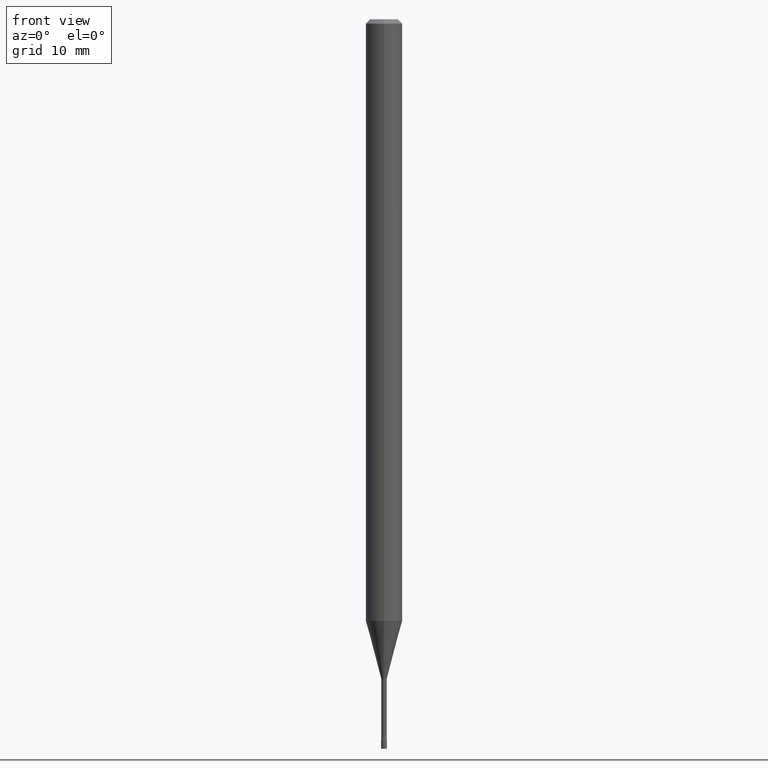
[diagram: clean part render]
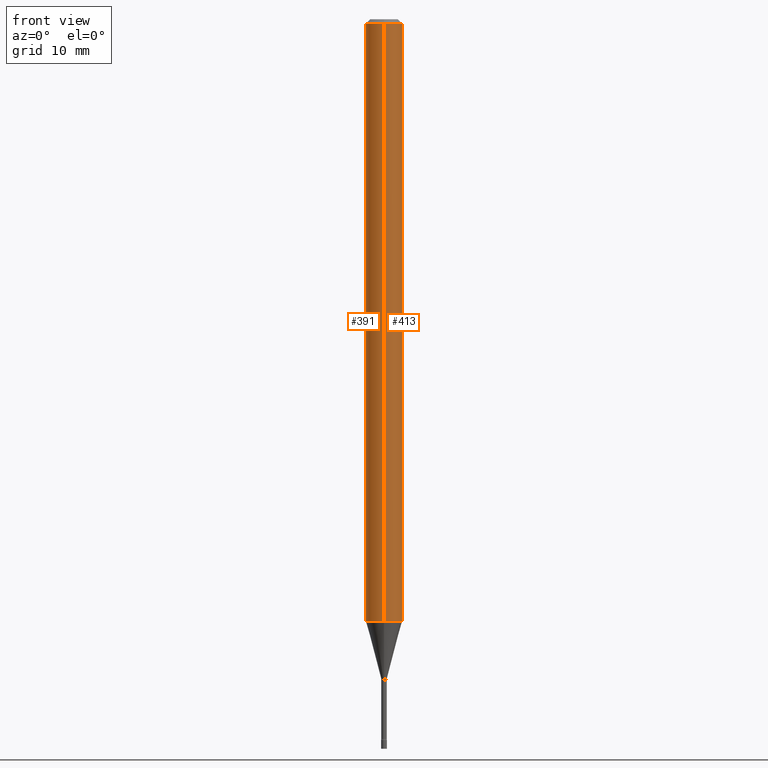
[diagram: same view with one multi-face feature highlighted, each face labeled with its STEP entity id]
A machine part, front view. The highlighted faces form ONE feature: a constant-radius fillet chain: 2 tangent blend faces with common blend radius 1.5875 mm. The faces share edges in the B-rep.
Their STEP definitions:
[1] entity #413 (Cylinder):
#21 = CARTESIAN_POINT ( 'NONE',  ( 4.440892098500625669E-16, 0.06250000000000000000, -2.182199867942855038E-16 ) ) ;
#32 = ORIENTED_EDGE ( 'NONE', *, *, #261, .T. ) ;
#34 = VERTEX_POINT ( 'NONE', #209 ) ;
#60 = CARTESIAN_POINT ( 'NONE',  ( -4.364351673553912750E-16, -0.06250000000000005551, -0.01499999999999981209 ) ) ;
#83 = EDGE_LOOP ( 'NONE', ( #241, #32, #414, #150 ) ) ;
#88 = CIRCLE ( 'NONE', #273, 0.06250000000000000000 ) ;
#101 = EDGE_CURVE ( 'NONE', #330, #34, #512, .T. ) ;
#102 = CARTESIAN_POINT ( 'NONE',  ( 4.440892098501133005E-16, 0.06249999999999995143, -0.01500000000000024751 ) ) ;
#107 = LINE ( 'NONE', #139, #145 ) ;
#119 = DIRECTION ( 'NONE',  ( -2.445441956787615872E-29, 3.491519788708568062E-15, 1.000000000000000000 ) ) ;
#139 = CARTESIAN_POINT ( 'NONE',  ( -4.364351673553916201E-16, -0.06250000000000000000, 2.182199867942855038E-16 ) ) ;
#145 = VECTOR ( 'NONE', #319, 39.37007874015748143 ) ;
#150 = ORIENTED_EDGE ( 'NONE', *, *, #204, .F. ) ;
#193 = DIRECTION ( 'NONE',  ( -2.445441956787615872E-29, 3.491519788708568062E-15, 1.000000000000000000 ) ) ;
#204 = EDGE_CURVE ( 'NONE', #330, #401, #107, .T. ) ;
#209 = CARTESIAN_POINT ( 'NONE',  ( 4.440892098501128074E-16, 0.06249999999999279743, -2.061828102118093753 ) ) ;
#222 = CARTESIAN_POINT ( 'NONE',  ( 0.000000000000000000, 0.000000000000000000, 0.000000000000000000 ) ) ;
#229 = CARTESIAN_POINT ( 'NONE',  ( 3.668162935181430919E-31, -5.237279683062863531E-17, -0.01500000000000003067 ) ) ;
#237 = EDGE_CURVE ( 'NONE', #401, #238, #88, .T. ) ;
#238 = VERTEX_POINT ( 'NONE', #102 ) ;
#241 = ORIENTED_EDGE ( 'NONE', *, *, #101, .T. ) ;
#261 = EDGE_CURVE ( 'NONE', #34, #238, #463, .T. ) ;
#268 = CARTESIAN_POINT ( 'NONE',  ( 5.042080948603366271E-29, -7.198913619460753817E-15, -2.061828102118093309 ) ) ;
#273 = AXIS2_PLACEMENT_3D ( 'NONE', #229, #431, #462 ) ;
#274 = FACE_OUTER_BOUND ( 'NONE', #83, .T. ) ;
#316 = CARTESIAN_POINT ( 'NONE',  ( -4.364351673553412316E-16, -0.06250000000000720257, -2.061828102118092865 ) ) ;
#319 = DIRECTION ( 'NONE',  ( -2.445441956787615872E-29, 3.491519788708568062E-15, 1.000000000000000000 ) ) ;
#330 = VERTEX_POINT ( 'NONE', #316 ) ;
#339 = AXIS2_PLACEMENT_3D ( 'NONE', #222, #193, #400 ) ;
#355 = VECTOR ( 'NONE', #467, 39.37007874015748143 ) ;
#400 = DIRECTION ( 'NONE',  ( -6.982962677686265922E-15, -1.000000000000000000, 3.491519788708568062E-15 ) ) ;
#401 = VERTEX_POINT ( 'NONE', #60 ) ;
#406 = DIRECTION ( 'NONE',  ( -6.982962677686265922E-15, -1.000000000000000000, 4.370956789862821150E-15 ) ) ;
#413 = ADVANCED_FACE ( 'NONE', ( #274 ), #430, .T. ) ;
#414 = ORIENTED_EDGE ( 'NONE', *, *, #237, .F. ) ;
#430 = CYLINDRICAL_SURFACE ( 'NONE', #339, 0.06250000000000000000 ) ;
#431 = DIRECTION ( 'NONE',  ( -2.445441956787615872E-29, 3.491519788708568062E-15, 1.000000000000000000 ) ) ;
#439 = AXIS2_PLACEMENT_3D ( 'NONE', #268, #119, #406 ) ;
#462 = DIRECTION ( 'NONE',  ( -6.982962677686265922E-15, -1.000000000000000000, 3.483106191921935554E-15 ) ) ;
#463 = LINE ( 'NONE', #21, #355 ) ;
#467 = DIRECTION ( 'NONE',  ( -2.445441956787615872E-29, 3.491519788708568062E-15, 1.000000000000000000 ) ) ;
#512 = CIRCLE ( 'NONE', #439, 0.06250000000000000000 ) ;
[2] entity #391 (Cylinder):
#3 = ORIENTED_EDGE ( 'NONE', *, *, #140, .F. ) ;
#21 = CARTESIAN_POINT ( 'NONE',  ( 4.440892098500625669E-16, 0.06250000000000000000, -2.182199867942855038E-16 ) ) ;
#34 = VERTEX_POINT ( 'NONE', #209 ) ;
#58 = DIRECTION ( 'NONE',  ( -6.982962677686265922E-15, -1.000000000000000000, 4.370956789862821150E-15 ) ) ;
#60 = CARTESIAN_POINT ( 'NONE',  ( -4.364351673553912750E-16, -0.06250000000000005551, -0.01499999999999981209 ) ) ;
#84 = DIRECTION ( 'NONE',  ( -2.445441956787615872E-29, 3.491519788708568062E-15, 1.000000000000000000 ) ) ;
#100 = FACE_OUTER_BOUND ( 'NONE', #326, .T. ) ;
#102 = CARTESIAN_POINT ( 'NONE',  ( 4.440892098501133005E-16, 0.06249999999999995143, -0.01500000000000024751 ) ) ;
#107 = LINE ( 'NONE', #139, #145 ) ;
#111 = ORIENTED_EDGE ( 'NONE', *, *, #226, .T. ) ;
#139 = CARTESIAN_POINT ( 'NONE',  ( -4.364351673553916201E-16, -0.06250000000000000000, 2.182199867942855038E-16 ) ) ;
#140 = EDGE_CURVE ( 'NONE', #238, #401, #315, .T. ) ;
#145 = VECTOR ( 'NONE', #319, 39.37007874015748143 ) ;
#194 = ORIENTED_EDGE ( 'NONE', *, *, #204, .T. ) ;
#201 = AXIS2_PLACEMENT_3D ( 'NONE', #322, #269, #58 ) ;
#204 = EDGE_CURVE ( 'NONE', #330, #401, #107, .T. ) ;
#209 = CARTESIAN_POINT ( 'NONE',  ( 4.440892098501128074E-16, 0.06249999999999279743, -2.061828102118093753 ) ) ;
#210 = DIRECTION ( 'NONE',  ( -6.982962677686265922E-15, -1.000000000000000000, 3.483106191921935554E-15 ) ) ;
#226 = EDGE_CURVE ( 'NONE', #34, #330, #450, .T. ) ;
#230 = CYLINDRICAL_SURFACE ( 'NONE', #433, 0.06250000000000000000 ) ;
#238 = VERTEX_POINT ( 'NONE', #102 ) ;
#261 = EDGE_CURVE ( 'NONE', #34, #238, #463, .T. ) ;
#269 = DIRECTION ( 'NONE',  ( -2.445441956787615872E-29, 3.491519788708568062E-15, 1.000000000000000000 ) ) ;
#270 = DIRECTION ( 'NONE',  ( -2.445441956787615872E-29, 3.491519788708568062E-15, 1.000000000000000000 ) ) ;
#295 = CARTESIAN_POINT ( 'NONE',  ( 3.668162935181430919E-31, -5.237279683062863531E-17, -0.01500000000000003067 ) ) ;
#315 = CIRCLE ( 'NONE', #432, 0.06250000000000000000 ) ;
#316 = CARTESIAN_POINT ( 'NONE',  ( -4.364351673553412316E-16, -0.06250000000000720257, -2.061828102118092865 ) ) ;
#319 = DIRECTION ( 'NONE',  ( -2.445441956787615872E-29, 3.491519788708568062E-15, 1.000000000000000000 ) ) ;
#322 = CARTESIAN_POINT ( 'NONE',  ( 5.042080948603366271E-29, -7.198913619460753817E-15, -2.061828102118093309 ) ) ;
#326 = EDGE_LOOP ( 'NONE', ( #334, #111, #194, #3 ) ) ;
#330 = VERTEX_POINT ( 'NONE', #316 ) ;
#334 = ORIENTED_EDGE ( 'NONE', *, *, #261, .F. ) ;
#352 = DIRECTION ( 'NONE',  ( -6.982962677686265922E-15, -1.000000000000000000, 3.491519788708568062E-15 ) ) ;
#355 = VECTOR ( 'NONE', #467, 39.37007874015748143 ) ;
#391 = ADVANCED_FACE ( 'NONE', ( #100 ), #230, .T. ) ;
#395 = CARTESIAN_POINT ( 'NONE',  ( 0.000000000000000000, 0.000000000000000000, 0.000000000000000000 ) ) ;
#401 = VERTEX_POINT ( 'NONE', #60 ) ;
#432 = AXIS2_PLACEMENT_3D ( 'NONE', #295, #84, #210 ) ;
#433 = AXIS2_PLACEMENT_3D ( 'NONE', #395, #270, #352 ) ;
#450 = CIRCLE ( 'NONE', #201, 0.06250000000000000000 ) ;
#463 = LINE ( 'NONE', #21, #355 ) ;
#467 = DIRECTION ( 'NONE',  ( -2.445441956787615872E-29, 3.491519788708568062E-15, 1.000000000000000000 ) ) ;